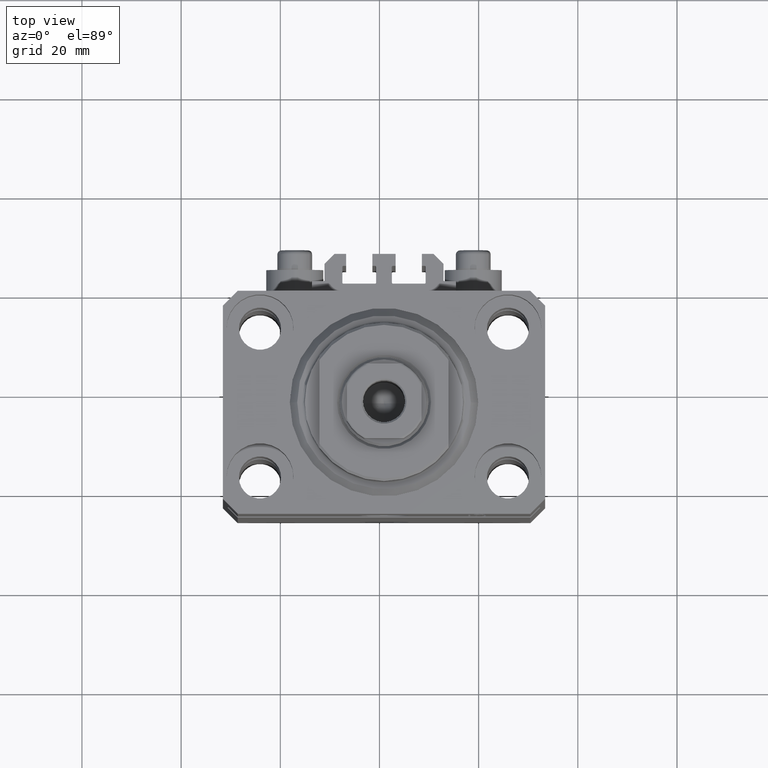
[diagram: clean part render]
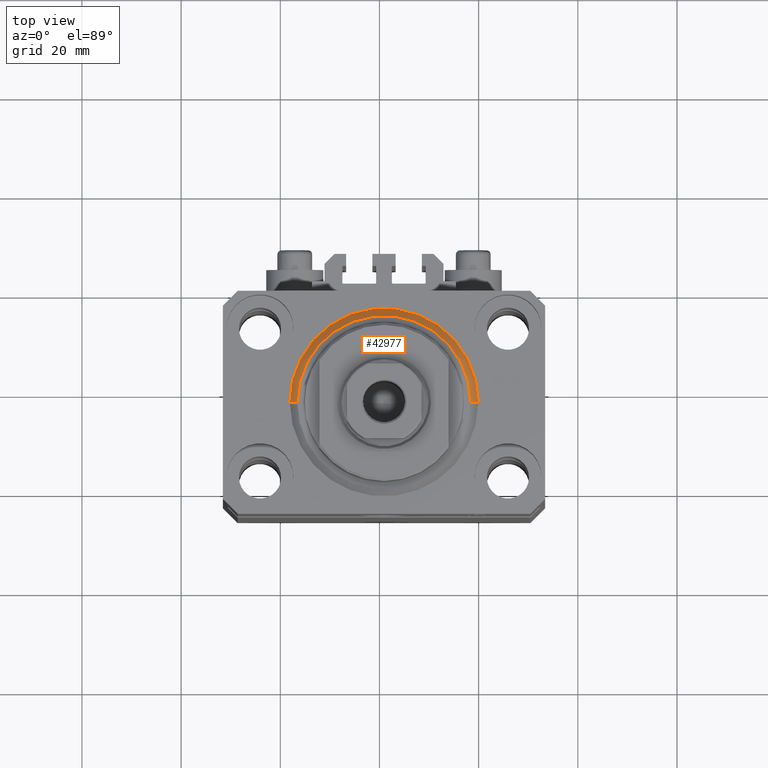
[diagram: same view with one face highlighted and labeled with its STEP entity id]
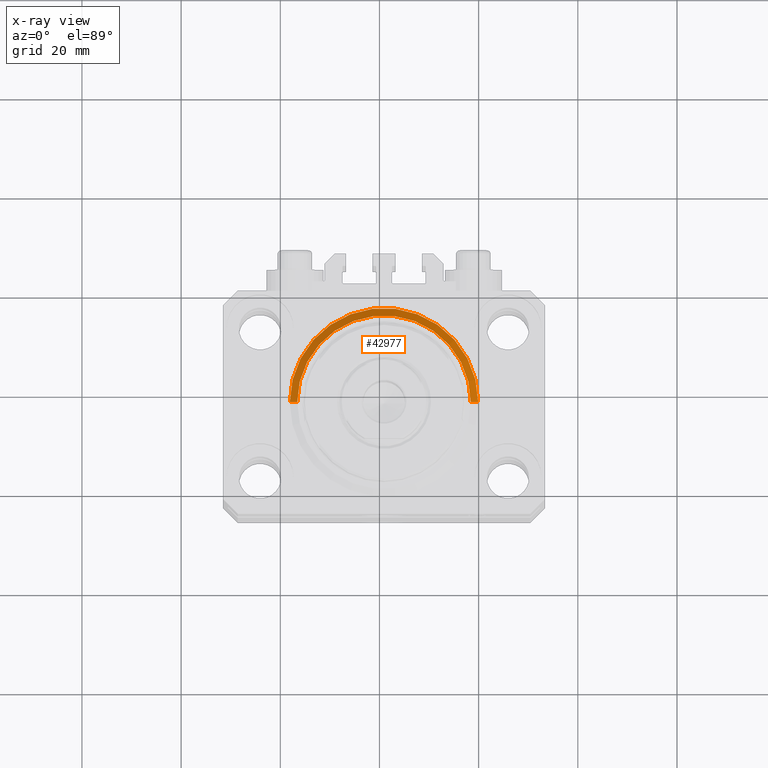
[diagram: x-ray of the same camera — body ghosted, the highlighted face saturated]
A machine part, top view. The second image highlights one B-rep face of the part: STEP entity #42977.
The next image is the same camera in x-ray: the body ghosted, the highlighted face saturated — about 0% of this face is hidden behind the body in this view.
In plain terms, the highlighted conical surface has half-angle 45 deg.
Its self-contained STEP definition (entity closure, byte-faithful):
#177 = EDGE_CURVE ( 'NONE', #44393, #28015, #38877, .T. ) ;
#1172 = DIRECTION ( 'NONE',  ( 1.000000000000000000, 0.000000000000000000, 0.000000000000000000 ) ) ;
#2165 = CONICAL_SURFACE ( 'NONE', #3662, 19.00000000000000000, 0.7853981633974492782 ) ;
#3200 = CARTESIAN_POINT ( 'NONE',  ( 0.000000000000000000, 0.000000000000000000, 1.500000000000001332 ) ) ;
#3535 = ORIENTED_EDGE ( 'NONE', *, *, #19556, .F. ) ;
#3662 = AXIS2_PLACEMENT_3D ( 'NONE', #44946, #41374, #18702 ) ;
#6319 = DIRECTION ( 'NONE',  ( 1.000000000000000000, 0.000000000000000000, 0.000000000000000000 ) ) ;
#7786 = AXIS2_PLACEMENT_3D ( 'NONE', #33631, #15010, #1172 ) ;
#10129 = DIRECTION ( 'NONE',  ( -0.000000000000000000, -0.000000000000000000, 1.000000000000000000 ) ) ;
#15010 = DIRECTION ( 'NONE',  ( -0.000000000000000000, -0.000000000000000000, -1.000000000000000000 ) ) ;
#15688 = ORIENTED_EDGE ( 'NONE', *, *, #46039, .F. ) ;
#16264 = CARTESIAN_POINT ( 'NONE',  ( -19.00000000000000000, 0.000000000000000000, 1.500000000000001332 ) ) ;
#18127 = EDGE_LOOP ( 'NONE', ( #3535, #40842, #20407, #15688 ) ) ;
#18215 = VECTOR ( 'NONE', #44497, 1000.000000000000000 ) ;
#18702 = DIRECTION ( 'NONE',  ( 1.000000000000000000, 0.000000000000000000, 0.000000000000000000 ) ) ;
#19556 = EDGE_CURVE ( 'NONE', #44254, #45656, #28327, .T. ) ;
#20407 = ORIENTED_EDGE ( 'NONE', *, *, #177, .F. ) ;
#21018 = CARTESIAN_POINT ( 'NONE',  ( 19.00000000000000000, 2.326828918379970970E-15, 1.500000000000001332 ) ) ;
#21808 = DIRECTION ( 'NONE',  ( -0.7071067811865483499, 8.659560562354942719E-17, 0.7071067811865467956 ) ) ;
#22084 = LINE ( 'NONE', #22317, #18215 ) ;
#22317 = CARTESIAN_POINT ( 'NONE',  ( 19.00000000000000000, 0.000000000000000000, 1.500000000000001332 ) ) ;
#24361 = CARTESIAN_POINT ( 'NONE',  ( -17.49999999999999645, 2.234980408443919215E-15, 0.000000000000000000 ) ) ;
#28015 = VERTEX_POINT ( 'NONE', #16264 ) ;
#28327 = CIRCLE ( 'NONE', #7786, 17.49999999999999645 ) ;
#30476 = AXIS2_PLACEMENT_3D ( 'NONE', #3200, #10129, #6319 ) ;
#30958 = VECTOR ( 'NONE', #21808, 1000.000000000000000 ) ;
#33319 = EDGE_CURVE ( 'NONE', #44254, #28015, #37067, .T. ) ;
#33631 = CARTESIAN_POINT ( 'NONE',  ( 0.000000000000000000, 0.000000000000000000, 0.000000000000000000 ) ) ;
#37067 = LINE ( 'NONE', #43519, #30958 ) ;
#37081 = FACE_OUTER_BOUND ( 'NONE', #18127, .T. ) ;
#37471 = CARTESIAN_POINT ( 'NONE',  ( 17.49999999999999645, 0.000000000000000000, 0.000000000000000000 ) ) ;
#38877 = CIRCLE ( 'NONE', #30476, 19.00000000000000000 ) ;
#40842 = ORIENTED_EDGE ( 'NONE', *, *, #33319, .T. ) ;
#41374 = DIRECTION ( 'NONE',  ( -0.000000000000000000, -0.000000000000000000, 1.000000000000000000 ) ) ;
#42977 = ADVANCED_FACE ( 'NONE', ( #37081 ), #2165, .T. ) ;
#43519 = CARTESIAN_POINT ( 'NONE',  ( -19.00000000000000000, 2.326828918379970970E-15, 1.500000000000001332 ) ) ;
#44254 = VERTEX_POINT ( 'NONE', #24361 ) ;
#44393 = VERTEX_POINT ( 'NONE', #21018 ) ;
#44497 = DIRECTION ( 'NONE',  ( 0.7071067811865483499, 0.000000000000000000, 0.7071067811865467956 ) ) ;
#44946 = CARTESIAN_POINT ( 'NONE',  ( 0.000000000000000000, 0.000000000000000000, 1.500000000000001332 ) ) ;
#45656 = VERTEX_POINT ( 'NONE', #37471 ) ;
#46039 = EDGE_CURVE ( 'NONE', #45656, #44393, #22084, .T. ) ;